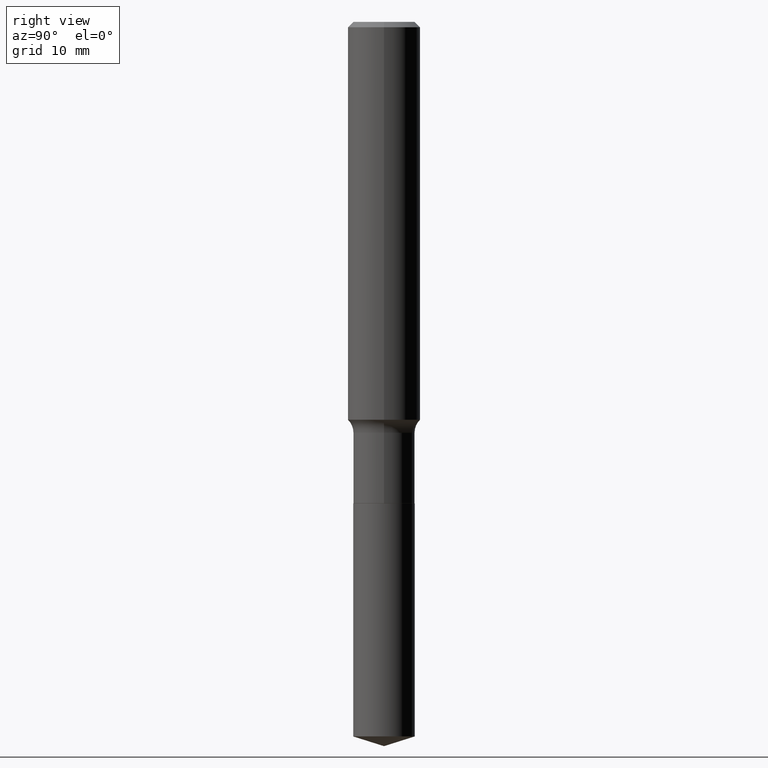
[diagram: clean part render]
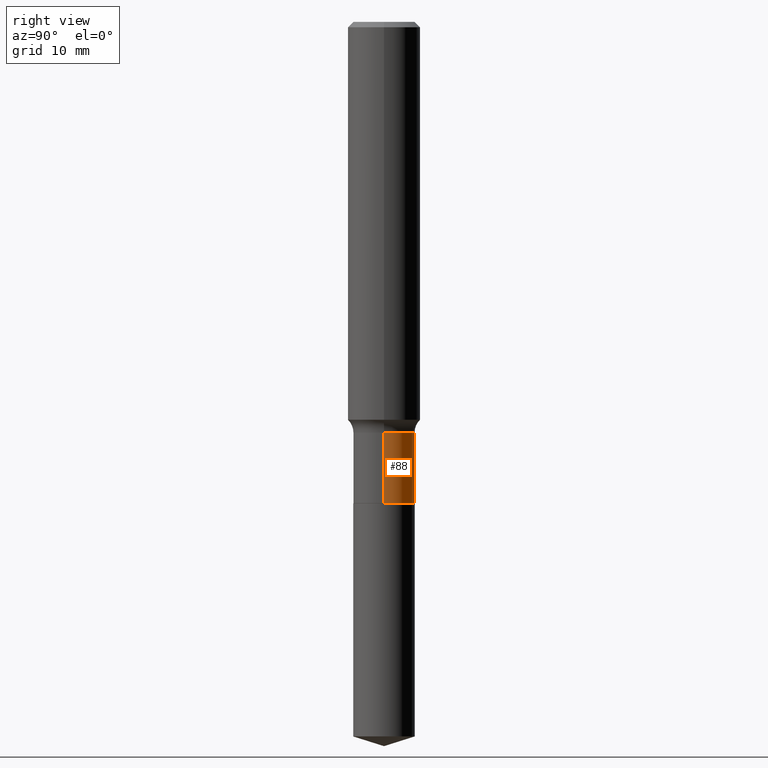
[diagram: same view with one face highlighted and labeled with its STEP entity id]
A machine part, right view. The second image highlights one B-rep face of the part: STEP entity #88.
In plain terms, the highlighted cylindrical surface (edge-blend (fillet) strip) has radius 3.3731 mm, axis along (-0, 0, 1).
Its self-contained STEP definition (entity closure, byte-faithful):
#1 = DIRECTION ( 'NONE',  ( -2.445468806185136877E-29, 3.491481338843145188E-15, 1.000000000000000000 ) ) ;
#32 = DIRECTION ( 'NONE',  ( 1.000000000000000000, -6.982962677686263555E-15, 0.000000000000000000 ) ) ;
#58 = CARTESIAN_POINT ( 'NONE',  ( -0.1327999999999999736, 9.436007530894128594E-16, -6.532345799858513932E-30 ) ) ;
#60 = EDGE_CURVE ( 'NONE', #86, #363, #490, .T. ) ;
#86 = VERTEX_POINT ( 'NONE', #117 ) ;
#88 = ADVANCED_FACE ( 'NONE', ( #454 ), #120, .T. ) ;
#117 = CARTESIAN_POINT ( 'NONE',  ( 0.1327999999999999736, -7.116686412963979916E-15, -1.772700000000000164 ) ) ;
#120 = CYLINDRICAL_SURFACE ( 'NONE', #235, 0.1327999999999999736 ) ;
#155 = CIRCLE ( 'NONE', #429, 0.1328000000000000014 ) ;
#160 = DIRECTION ( 'NONE',  ( -2.445468806185136597E-29, 3.491481338843145583E-15, 1.000000000000000000 ) ) ;
#171 = EDGE_CURVE ( 'NONE', #434, #86, #200, .T. ) ;
#181 = EDGE_LOOP ( 'NONE', ( #341, #334, #250, #397 ) ) ;
#184 = DIRECTION ( 'NONE',  ( -2.445468806185136597E-29, 3.491481338843145583E-15, 1.000000000000000000 ) ) ;
#200 = LINE ( 'NONE', #418, #321 ) ;
#201 = CARTESIAN_POINT ( 'NONE',  ( -0.1327999999999999736, -5.778024546384469755E-15, -1.772700000000000164 ) ) ;
#221 = LINE ( 'NONE', #58, #394 ) ;
#235 = AXIS2_PLACEMENT_3D ( 'NONE', #462, #160, #420 ) ;
#250 = ORIENTED_EDGE ( 'NONE', *, *, #60, .F. ) ;
#258 = CARTESIAN_POINT ( 'NONE',  ( 5.080705991730240333E-29, -7.253901629580520352E-15, -2.077600000000000335 ) ) ;
#284 = AXIS2_PLACEMENT_3D ( 'NONE', #408, #184, #414 ) ;
#305 = DIRECTION ( 'NONE',  ( -2.445468806185136597E-29, 3.491481338843145583E-15, 1.000000000000000000 ) ) ;
#321 = VECTOR ( 'NONE', #422, 39.37007874015748143 ) ;
#334 = ORIENTED_EDGE ( 'NONE', *, *, #409, .T. ) ;
#341 = ORIENTED_EDGE ( 'NONE', *, *, #401, .T. ) ;
#363 = VERTEX_POINT ( 'NONE', #201 ) ;
#377 = VERTEX_POINT ( 'NONE', #404 ) ;
#394 = VECTOR ( 'NONE', #1, 39.37007874015748143 ) ;
#397 = ORIENTED_EDGE ( 'NONE', *, *, #171, .F. ) ;
#401 = EDGE_CURVE ( 'NONE', #434, #377, #155, .T. ) ;
#404 = CARTESIAN_POINT ( 'NONE',  ( -0.1328000000000000014, -5.778024546384469755E-15, -2.077600000000000335 ) ) ;
#408 = CARTESIAN_POINT ( 'NONE',  ( 4.335082552724392030E-29, -6.189348969367244877E-15, -1.772700000000000164 ) ) ;
#409 = EDGE_CURVE ( 'NONE', #377, #363, #221, .T. ) ;
#414 = DIRECTION ( 'NONE',  ( 1.000000000000000000, -6.982962677686265133E-15, 0.000000000000000000 ) ) ;
#418 = CARTESIAN_POINT ( 'NONE',  ( 0.1327999999999999736, -9.273374435967360251E-16, 6.475562758257002307E-30 ) ) ;
#420 = DIRECTION ( 'NONE',  ( 1.000000000000000000, -6.982962677686266711E-15, 4.876176775795936353E-29 ) ) ;
#422 = DIRECTION ( 'NONE',  ( -2.445468806185136877E-29, 3.491481338843145188E-15, 1.000000000000000000 ) ) ;
#429 = AXIS2_PLACEMENT_3D ( 'NONE', #258, #305, #32 ) ;
#434 = VERTEX_POINT ( 'NONE', #482 ) ;
#454 = FACE_OUTER_BOUND ( 'NONE', #181, .T. ) ;
#462 = CARTESIAN_POINT ( 'NONE',  ( 0.000000000000000000, 0.000000000000000000, 0.000000000000000000 ) ) ;
#482 = CARTESIAN_POINT ( 'NONE',  ( 0.1328000000000000014, -8.181239073177256180E-15, -2.077600000000000335 ) ) ;
#490 = CIRCLE ( 'NONE', #284, 0.1327999999999999736 ) ;